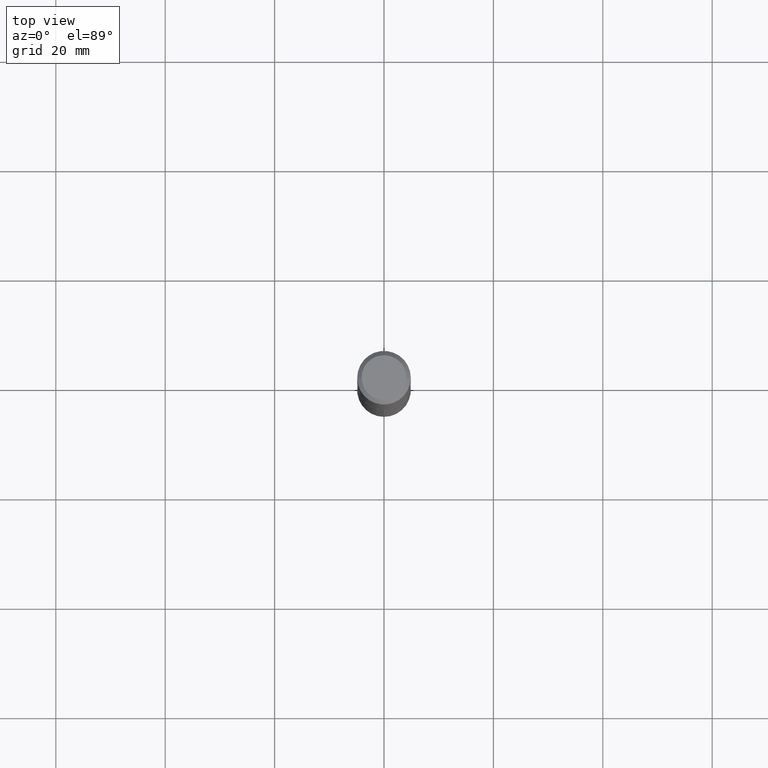
[diagram: clean part render]
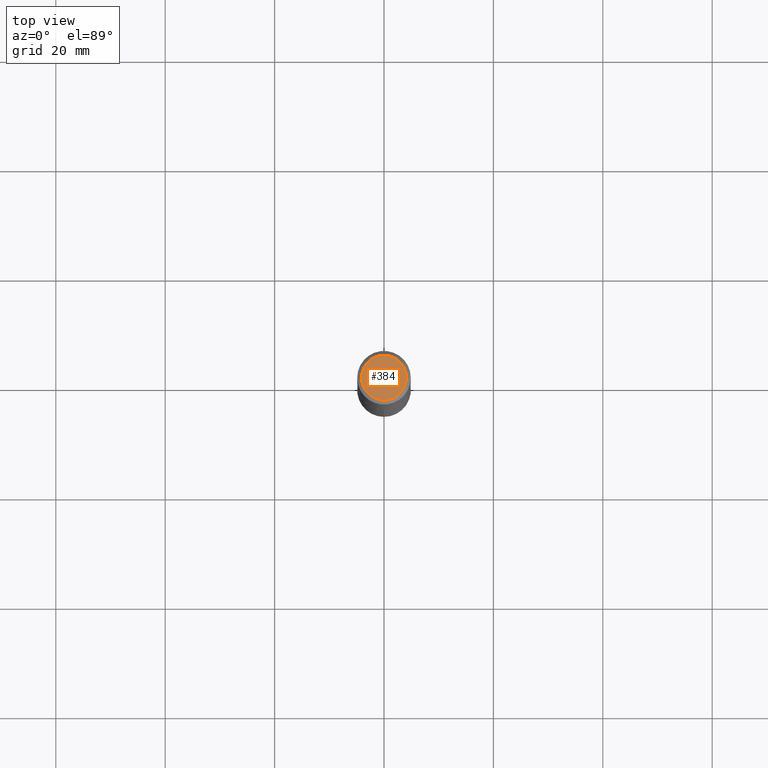
[diagram: same view with one face highlighted and labeled with its STEP entity id]
A machine part, top view. The second image highlights one B-rep face of the part: STEP entity #384.
In plain terms, the highlighted planar face has unit normal (0, -0, -1).
Its self-contained STEP definition (entity closure, byte-faithful):
#5 = DIRECTION ( 'NONE',  ( -1.000000000000000000, 6.982962677686265922E-15, -4.876176775795935793E-29 ) ) ;
#34 = CARTESIAN_POINT ( 'NONE',  ( -2.919964657261546988E-48, 4.168935659749483075E-34, 1.194030629168650459E-19 ) ) ;
#37 = DIRECTION ( 'NONE',  ( 2.438088387897960049E-29, -3.491481338843145188E-15, -1.000000000000000000 ) ) ;
#46 = CARTESIAN_POINT ( 'NONE',  ( -5.839929314523093975E-48, 8.337871319498966151E-34, 2.388061258337300918E-19 ) ) ;
#72 = CARTESIAN_POINT ( 'NONE',  ( -0.1616499999999999604, 1.183350312767408201E-15, 2.388061258256453268E-19 ) ) ;
#77 = AXIS2_PLACEMENT_3D ( 'NONE', #34, #37, #5 ) ;
#117 = CARTESIAN_POINT ( 'NONE',  ( -5.839929314523093975E-48, 8.337871319498966151E-34, 2.388061258337300918E-19 ) ) ;
#120 = DIRECTION ( 'NONE',  ( 1.000000000000000000, -6.982962677686267499E-15, 4.876183415243420366E-29 ) ) ;
#125 = CIRCLE ( 'NONE', #247, 0.1616499999999999604 ) ;
#128 = PLANE ( 'NONE',  #77 ) ;
#129 = AXIS2_PLACEMENT_3D ( 'NONE', #46, #142, #382 ) ;
#142 = DIRECTION ( 'NONE',  ( -2.445468806185136597E-29, 3.491481338843145583E-15, 1.000000000000000000 ) ) ;
#143 = ORIENTED_EDGE ( 'NONE', *, *, #361, .T. ) ;
#158 = EDGE_CURVE ( 'NONE', #349, #167, #293, .T. ) ;
#167 = VERTEX_POINT ( 'NONE', #72 ) ;
#214 = FACE_OUTER_BOUND ( 'NONE', #232, .T. ) ;
#232 = EDGE_LOOP ( 'NONE', ( #143, #322 ) ) ;
#247 = AXIS2_PLACEMENT_3D ( 'NONE', #117, #323, #120 ) ;
#293 = CIRCLE ( 'NONE', #129, 0.1616499999999999604 ) ;
#305 = CARTESIAN_POINT ( 'NONE',  ( 0.1616499999999999604, -1.270749178474372533E-15, 2.388061258421199723E-19 ) ) ;
#322 = ORIENTED_EDGE ( 'NONE', *, *, #158, .T. ) ;
#323 = DIRECTION ( 'NONE',  ( -2.445468806185136597E-29, 3.491481338843145583E-15, 1.000000000000000000 ) ) ;
#349 = VERTEX_POINT ( 'NONE', #305 ) ;
#361 = EDGE_CURVE ( 'NONE', #167, #349, #125, .T. ) ;
#382 = DIRECTION ( 'NONE',  ( 1.000000000000000000, -6.982962677686267499E-15, 4.876183415243420366E-29 ) ) ;
#384 = ADVANCED_FACE ( 'NONE', ( #214 ), #128, .F. ) ;